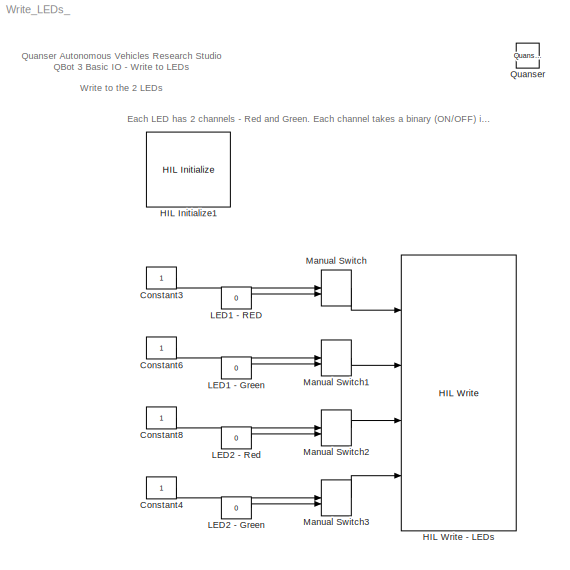
MODEL Write_LEDs_
KIND model
CONFIG InitFcn = set_param(gcs, 'ZoomFactor','FitSystem')
BLOCK [Constant] Constant3
  SID = 8324
BLOCK [Constant] Constant4
  SID = 8325
BLOCK [Constant] Constant6
  SID = 8326
BLOCK [Constant] Constant8
  SID = 8327
BLOCK [Reference] HIL Initialize1  REF=quarc_library/Data Acquisition/Generic/Configuration/HIL Initialize
  AttributesFormatString = %<object_name> (%<board_type>-%<board_number>)
  MultiThreadCoSim = auto
  Ports = []
  Priority = -99
  SID = 8338
  SourceBlock = quarc_library/Data Acquisition/Generic/Configuration/HIL Initialize
  SourceProductName = QUARC Targets
  SourceType = HIL Initialize
  UserData = DataTag1
  UserDataPersistent = on
  active = off
  analog_input_channels = [0:5]
  analog_input_configurations = []
  analog_input_maximums = [16.5 3.3 3.3 3.3 3.3 3.3]
  analog_input_minimums = [0 0 0 0 0 0]
  analog_output_channels = []
  analog_output_maximums = []
  analog_output_minimums = []
  board_number = 0
  board_options = pwm0_en=1;pwm0_pin=12;pwm1_en=1;pwm1_pin=13;
  board_type = qbot3
  clock_modes = []
  digital_input_channels = [28:58]
  digital_output_channels = [28:31]
  digital_output_configuration = []
  encoder_channels = [0:1]
  encoder_filter_frequency = []
  exclusive = off
  final_analog_outputs = []
  final_digital_outputs = [0]
  final_other_outputs = [0 0 0 7]
  final_pwm_outputs = [0]
  hardware_clocks = []
  initial_analog_outputs = []
  initial_clock_frequencies = []
  initial_digital_outputs = [0]
  initial_encoder_counts = [0]
  initial_other_outputs = [0 0 0 7]
  initial_pwm_outputs = [0]
  object_name = HIL-1
  other_output_channels = [2000:2001 14000 16000]
  pwm_alignment = [0]
  pwm_channels = [0:1]
  pwm_configuration = [0]
  pwm_frequency = 100e6 / 4095
  pwm_leading_deadband = []
  pwm_modes = 0
  pwm_polarity = [1]
  pwm_trailing_deadband = []
  quadrature = [4]
  set_analog_input_params_at_start = off
  set_analog_input_params_at_switch_in = off
  set_analog_output_params_at_start = off
  set_analog_output_params_at_switch_in = off
  set_analog_outputs_at_start = off
  set_analog_outputs_at_switch_in = off
  set_analog_outputs_at_switch_out = off
  set_analog_outputs_at_terminate = off
  set_analog_outputs_on_watchdog = off
  set_clock_frequencies_at_start = off
  set_clock_frequencies_at_switch_in = off
  set_clock_params_at_start = off
  set_clock_params_at_switch_in = off
  set_digital_output_params_at_start = off
  set_digital_output_params_at_switch_in = off
  set_digital_outputs_at_start = on
  set_digital_outputs_at_switch_in = off
  set_digital_outputs_at_switch_out = off
  set_digital_outputs_at_terminate = on
  set_digital_outputs_on_watchdog = off
  set_encoder_counts_at_start = on
  set_encoder_counts_at_switch_in = off
  set_encoder_params_at_start = on
  set_encoder_params_at_switch_in = off
  set_other_outputs_at_start = on
  set_other_outputs_at_switch_in = off
  set_other_outputs_at_switch_out = off
  set_other_outputs_at_terminate = on
  set_other_outputs_on_watchdog = off
  set_pwm_outputs_at_start = on
  set_pwm_outputs_at_switch_in = off
  set_pwm_outputs_at_switch_out = off
  set_pwm_outputs_at_terminate = on
  set_pwm_outputs_on_watchdog = off
  set_pwm_params_at_start = on
  set_pwm_params_at_switch_in = off
  watchdog_analog_outputs = []
  watchdog_digital_outputs = []
  watchdog_other_outputs = []
  watchdog_pwm_outputs = []
BLOCK [Reference] HIL Write - LEDs  REF=quarc_library/Data Acquisition/Generic/Immediate I//O/HIL Write
  AttributesFormatString = (%<object_name>)
  MultiThreadCoSim = auto
  Ports = [4]
  SID = 8328
  SourceBlock = quarc_library/Data Acquisition/Generic/Immediate I//O/HIL Write
  SourceProductName = QUARC Targets
  SourceType = HIL Write
  UserData = DataTag2
  UserDataPersistent = on
  active = off
  analog_channels = []
  digital_channels = [28:31]
  object_name = HIL-1
  other_channels = []
  pwm_channels = []
  sample_time = -1
  vector_input = off
BLOCK [Constant] LED1 - Green
  SID = 8329
  Value = 0
BLOCK [Constant] LED1 - RED
  SID = 8330
  Value = 0
BLOCK [Constant] LED2 - Green
  SID = 8331
  Value = 0
BLOCK [Constant] LED2 - Red
  SID = 8332
  Value = 0
BLOCK [ManualSwitch] Manual Switch
  CurrentSetting = 0
  SID = 8333
BLOCK [ManualSwitch] Manual Switch1
  CurrentSetting = 0
  SID = 8334
BLOCK [ManualSwitch] Manual Switch2
  CurrentSetting = 0
  SID = 8335
BLOCK [ManualSwitch] Manual Switch3
  CurrentSetting = 0
  SID = 8336
BLOCK [Reference] Quanser  REF=quarc_library/Logos/Quanser
  Ports = []
  RTWMemSecDataConstants = Inherit from model
  RTWMemSecDataInternal = Inherit from model
  RTWMemSecDataParameters = Inherit from model
  RTWMemSecFuncExecute = Inherit from model
  RTWMemSecFuncInitTerm = Inherit from model
  SID = 8271
  SourceBlock = quarc_library/Logos/Quanser
  SourceProductName = QUARC Targets
  SourceType = Powered by Quanser
ANNOTATION (root): \n \n Each LED has 2 channels - Red and Green. Each channel takes a binary (ON/OFF) input and hence, 4 values are possible for each LED (Off, Red, Green, Yellow). \n \n NOTE: Digitial channels 9 and 10 can be used as outputs (writing to LED1) or as inputs (reading from bumpers), but the use case is mutually exclusive. Thus, it is not possible to both write to LED1 and read from the bumpers simulta...<+149ch>
ANNOTATION (root): \n \n Quanser Autonomous Vehicles Research Studio QBot 3 Basic IO - Write to LEDs
ANNOTATION (root): Write to the 2 LEDs
LINE Constant3:1 -> Manual Switch:1
LINE Constant4:1 -> Manual Switch3:1
LINE Constant6:1 -> Manual Switch1:1
LINE Constant8:1 -> Manual Switch2:1
LINE LED1 - Green:1 -> Manual Switch1:2
LINE LED1 - RED:1 -> Manual Switch:2
LINE LED2 - Green:1 -> Manual Switch3:2
LINE LED2 - Red:1 -> Manual Switch2:2
LINE Manual Switch1:1 -> HIL Write - LEDs:2
LINE Manual Switch2:1 -> HIL Write - LEDs:3
LINE Manual Switch3:1 -> HIL Write - LEDs:4
LINE Manual Switch:1 -> HIL Write - LEDs:1
